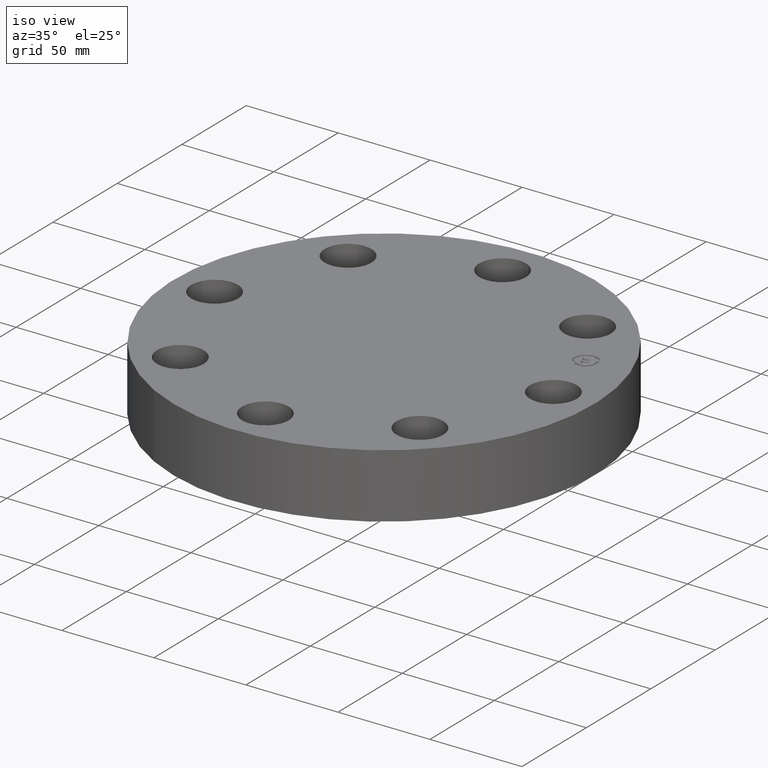
[diagram: clean part render]
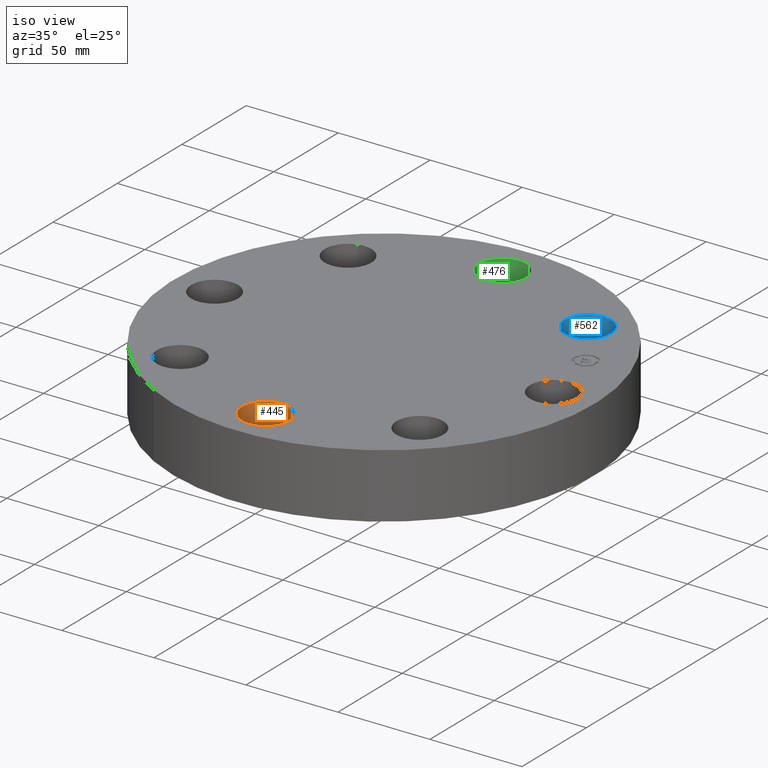
[diagram: same view with three faces highlighted in distinct colors, each labeled with its STEP entity id]
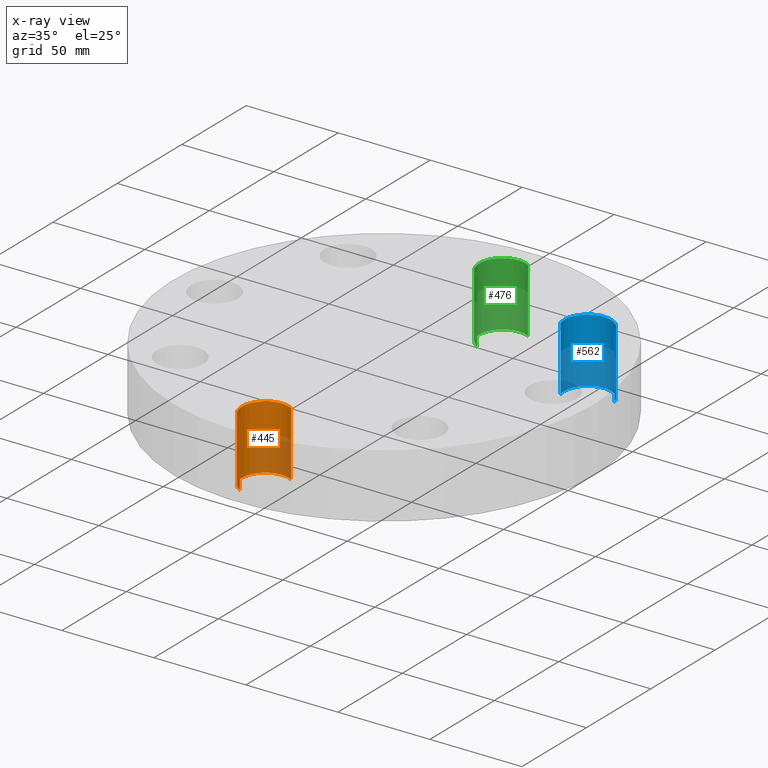
[diagram: x-ray of the same camera — body ghosted, the three highlighted faces saturated]
A machine part, iso view with three faces highlighted in distinct colors.
The next image is the same camera in x-ray (body ghosted, the three faces saturated) — at least one of them is partly hidden behind the body in this view.
Their STEP definitions:

[orange] entity #445 — the highlighted cylindrical surface (edge-blend (fillet) strip) has radius 12.7 mm, axis along (0, -0, -1).
#262=AXIS2_PLACEMENT_3D('Circle Axis2P3D',#260,#261,$) ;
#406=AXIS2_PLACEMENT_3D('Cylinder Axis2P3D',#403,#404,#405) ;
#436=AXIS2_PLACEMENT_3D('Circle Axis2P3D',#434,#435,$) ;
#255=CARTESIAN_POINT('Vertex',(0.239712769303,-3.18620871907,0.)) ;
#257=CARTESIAN_POINT('Vertex',(-0.239712769303,-4.06379128096,0.)) ;
#260=CARTESIAN_POINT('Axis2P3D Location',(-8.39223703654E-016,-3.62500000001,0.)) ;
#403=CARTESIAN_POINT('Axis2P3D Location',(-3.37515236756E-016,-3.62500000001,1.37606299213)) ;
#408=CARTESIAN_POINT('Line Origine',(0.239712769303,-3.18620871907,0.690000000003)) ;
#412=CARTESIAN_POINT('Vertex',(0.239712769303,-3.18620871907,1.38000000001)) ;
#415=CARTESIAN_POINT('Line Origine',(-0.239712769303,-4.06379128096,0.690000000003)) ;
#419=CARTESIAN_POINT('Vertex',(-0.239712769303,-4.06379128096,1.38000000001)) ;
#434=CARTESIAN_POINT('Axis2P3D Location',(-3.37515236756E-016,-3.62500000001,1.38000000001)) ;
#261=DIRECTION('Axis2P3D Direction',(0.,0.,-0.0393700787402)) ;
#404=DIRECTION('Axis2P3D Direction',(0.,-0.,-0.0393700787402)) ;
#405=DIRECTION('Axis2P3D XDirection',(-0.0188750212049,-0.0345504945626,0.)) ;
#409=DIRECTION('Vector Direction',(0.,0.,-0.0393700787402)) ;
#416=DIRECTION('Vector Direction',(0.,0.,-0.0393700787402)) ;
#435=DIRECTION('Axis2P3D Direction',(0.,-0.,-0.0393700787402)) ;
#410=VECTOR('Line Direction',#409,0.0393700787402) ;
#417=VECTOR('Line Direction',#416,0.0393700787402) ;
#440=ORIENTED_EDGE('',*,*,#421,.F.) ;
#441=ORIENTED_EDGE('',*,*,#264,.T.) ;
#442=ORIENTED_EDGE('',*,*,#414,.T.) ;
#443=ORIENTED_EDGE('',*,*,#438,.F.) ;
#445=ADVANCED_FACE('PartBody',(#444),#407,.F.) ;
#263=CIRCLE('generated circle',#262,0.500000000002) ;
#437=CIRCLE('generated circle',#436,0.500000000002) ;
#407=CYLINDRICAL_SURFACE('generated cylinder',#406,0.500000000002) ;
#264=EDGE_CURVE('',#258,#256,#263,.T.) ;
#414=EDGE_CURVE('',#256,#413,#411,.F.) ;
#421=EDGE_CURVE('',#258,#420,#418,.F.) ;
#438=EDGE_CURVE('',#420,#413,#437,.T.) ;
#439=EDGE_LOOP('',(#440,#441,#442,#443)) ;
#444=FACE_OUTER_BOUND('',#439,.T.) ;
#411=LINE('Line',#408,#410) ;
#418=LINE('Line',#415,#417) ;
#256=VERTEX_POINT('',#255) ;
#258=VERTEX_POINT('',#257) ;
#413=VERTEX_POINT('',#412) ;
#420=VERTEX_POINT('',#419) ;

[blue] entity #562 — the highlighted cylindrical surface (edge-blend (fillet) strip) has radius 12.7 mm, axis along (0, 0, -1).
#343=AXIS2_PLACEMENT_3D('Circle Axis2P3D',#341,#342,$) ;
#535=AXIS2_PLACEMENT_3D('Cylinder Axis2P3D',#532,#533,#534) ;
#553=AXIS2_PLACEMENT_3D('Circle Axis2P3D',#551,#552,$) ;
#341=CARTESIAN_POINT('Axis2P3D Location',(2.56326208181,2.56326208181,0.)) ;
#345=CARTESIAN_POINT('Vertex',(2.08348726682,2.42249231624,0.)) ;
#347=CARTESIAN_POINT('Vertex',(3.04303689681,2.70403184738,0.)) ;
#532=CARTESIAN_POINT('Axis2P3D Location',(2.56326208181,2.56326208181,1.37606299213)) ;
#537=CARTESIAN_POINT('Line Origine',(2.08348726682,2.42249231624,0.690000000003)) ;
#541=CARTESIAN_POINT('Vertex',(2.08348726682,2.42249231624,1.38000000001)) ;
#544=CARTESIAN_POINT('Line Origine',(3.04303689681,2.70403184738,0.690000000003)) ;
#548=CARTESIAN_POINT('Vertex',(3.04303689681,2.70403184738,1.38000000001)) ;
#551=CARTESIAN_POINT('Axis2P3D Location',(2.56326208181,2.56326208181,1.38000000001)) ;
#342=DIRECTION('Axis2P3D Direction',(0.,0.,-0.0393700787402)) ;
#533=DIRECTION('Axis2P3D Direction',(0.,0.,-0.0393700787402)) ;
#534=DIRECTION('Axis2P3D XDirection',(0.0377775444876,0.0110842335096,0.)) ;
#538=DIRECTION('Vector Direction',(0.,0.,-0.0393700787402)) ;
#545=DIRECTION('Vector Direction',(0.,0.,-0.0393700787402)) ;
#552=DIRECTION('Axis2P3D Direction',(0.,0.,-0.0393700787402)) ;
#539=VECTOR('Line Direction',#538,0.0393700787402) ;
#546=VECTOR('Line Direction',#545,0.0393700787402) ;
#557=ORIENTED_EDGE('',*,*,#543,.F.) ;
#558=ORIENTED_EDGE('',*,*,#349,.T.) ;
#559=ORIENTED_EDGE('',*,*,#550,.T.) ;
#560=ORIENTED_EDGE('',*,*,#555,.F.) ;
#562=ADVANCED_FACE('PartBody',(#561),#536,.F.) ;
#344=CIRCLE('generated circle',#343,0.500000000002) ;
#554=CIRCLE('generated circle',#553,0.500000000002) ;
#536=CYLINDRICAL_SURFACE('generated cylinder',#535,0.500000000002) ;
#349=EDGE_CURVE('',#346,#348,#344,.T.) ;
#543=EDGE_CURVE('',#346,#542,#540,.F.) ;
#550=EDGE_CURVE('',#348,#549,#547,.F.) ;
#555=EDGE_CURVE('',#542,#549,#554,.T.) ;
#556=EDGE_LOOP('',(#557,#558,#559,#560)) ;
#561=FACE_OUTER_BOUND('',#556,.T.) ;
#540=LINE('Line',#537,#539) ;
#547=LINE('Line',#544,#546) ;
#346=VERTEX_POINT('',#345) ;
#348=VERTEX_POINT('',#347) ;
#542=VERTEX_POINT('',#541) ;
#549=VERTEX_POINT('',#548) ;

[green] entity #476 — the highlighted cylindrical surface (edge-blend (fillet) strip) has radius 12.7 mm, axis along (0, 0, -1).
#325=AXIS2_PLACEMENT_3D('Circle Axis2P3D',#323,#324,$) ;
#449=AXIS2_PLACEMENT_3D('Cylinder Axis2P3D',#446,#447,#448) ;
#467=AXIS2_PLACEMENT_3D('Circle Axis2P3D',#465,#466,$) ;
#323=CARTESIAN_POINT('Axis2P3D Location',(-6.2941777774E-016,3.62500000001,0.)) ;
#327=CARTESIAN_POINT('Vertex',(-0.239712769303,3.18620871907,0.)) ;
#329=CARTESIAN_POINT('Vertex',(0.239712769303,4.06379128096,0.)) ;
#446=CARTESIAN_POINT('Axis2P3D Location',(-6.65901697039E-016,3.62500000001,1.37606299213)) ;
#451=CARTESIAN_POINT('Line Origine',(-0.239712769303,3.18620871907,0.690000000003)) ;
#455=CARTESIAN_POINT('Vertex',(-0.239712769303,3.18620871907,1.38000000001)) ;
#458=CARTESIAN_POINT('Line Origine',(0.239712769303,4.06379128096,0.690000000003)) ;
#462=CARTESIAN_POINT('Vertex',(0.239712769303,4.06379128096,1.38000000001)) ;
#465=CARTESIAN_POINT('Axis2P3D Location',(-6.65901697039E-016,3.62500000001,1.38000000001)) ;
#324=DIRECTION('Axis2P3D Direction',(0.,0.,-0.0393700787402)) ;
#447=DIRECTION('Axis2P3D Direction',(0.,0.,-0.0393700787402)) ;
#448=DIRECTION('Axis2P3D XDirection',(0.0188750212049,0.0345504945626,0.)) ;
#452=DIRECTION('Vector Direction',(0.,0.,-0.0393700787402)) ;
#459=DIRECTION('Vector Direction',(0.,0.,-0.0393700787402)) ;
#466=DIRECTION('Axis2P3D Direction',(0.,0.,-0.0393700787402)) ;
#453=VECTOR('Line Direction',#452,0.0393700787402) ;
#460=VECTOR('Line Direction',#459,0.0393700787402) ;
#471=ORIENTED_EDGE('',*,*,#457,.F.) ;
#472=ORIENTED_EDGE('',*,*,#331,.T.) ;
#473=ORIENTED_EDGE('',*,*,#464,.T.) ;
#474=ORIENTED_EDGE('',*,*,#469,.F.) ;
#476=ADVANCED_FACE('PartBody',(#475),#450,.F.) ;
#326=CIRCLE('generated circle',#325,0.500000000002) ;
#468=CIRCLE('generated circle',#467,0.500000000002) ;
#450=CYLINDRICAL_SURFACE('generated cylinder',#449,0.500000000002) ;
#331=EDGE_CURVE('',#328,#330,#326,.T.) ;
#457=EDGE_CURVE('',#328,#456,#454,.F.) ;
#464=EDGE_CURVE('',#330,#463,#461,.F.) ;
#469=EDGE_CURVE('',#456,#463,#468,.T.) ;
#470=EDGE_LOOP('',(#471,#472,#473,#474)) ;
#475=FACE_OUTER_BOUND('',#470,.T.) ;
#454=LINE('Line',#451,#453) ;
#461=LINE('Line',#458,#460) ;
#328=VERTEX_POINT('',#327) ;
#330=VERTEX_POINT('',#329) ;
#456=VERTEX_POINT('',#455) ;
#463=VERTEX_POINT('',#462) ;